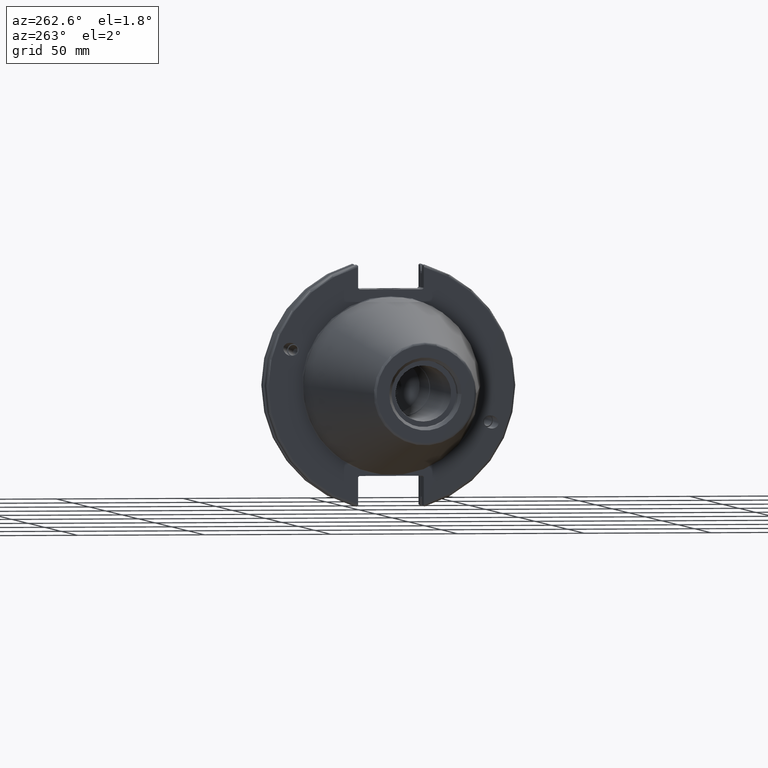
[diagram: clean part render]
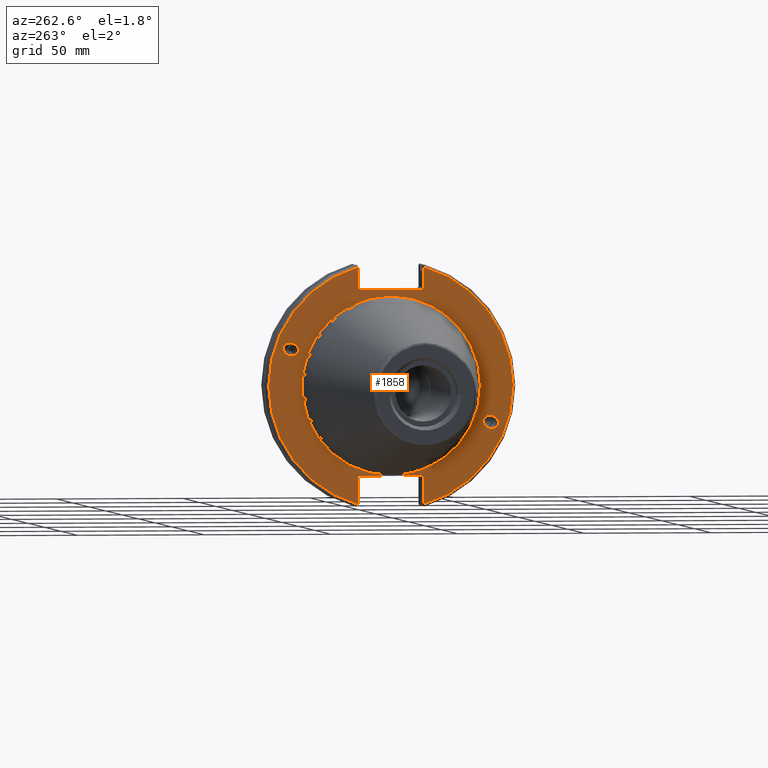
[diagram: same view with one face highlighted and labeled with its STEP entity id]
A machine part, auxiliary view. The second image highlights one B-rep face of the part: STEP entity #1858.
In plain terms, the highlighted planar face has unit normal (-1, 0, 0).
Its self-contained STEP definition (entity closure, byte-faithful):
#31=ELLIPSE('',#2040,3.05193647190364,2.5);
#32=ELLIPSE('',#2074,3.05193647190364,2.5);
#85=FACE_BOUND('',#567,.T.);
#86=FACE_BOUND('',#568,.T.);
#87=FACE_BOUND('',#569,.T.);
#103=PLANE('',#2088);
#212=LINE('',#3477,#315);
#213=LINE('',#3479,#316);
#214=LINE('',#3481,#317);
#215=LINE('',#3483,#318);
#216=LINE('',#3485,#319);
#217=LINE('',#3489,#320);
#218=LINE('',#3491,#321);
#219=LINE('',#3493,#322);
#220=LINE('',#3495,#323);
#221=LINE('',#3496,#324);
#315=VECTOR('',#2544,10.);
#316=VECTOR('',#2545,10.);
#317=VECTOR('',#2546,10.);
#318=VECTOR('',#2547,10.);
#319=VECTOR('',#2548,10.);
#320=VECTOR('',#2551,10.);
#321=VECTOR('',#2552,10.);
#322=VECTOR('',#2553,10.);
#323=VECTOR('',#2554,10.);
#324=VECTOR('',#2555,10.);
#446=FACE_OUTER_BOUND('',#566,.T.);
#566=EDGE_LOOP('',(#1540,#1541,#1542,#1543,#1544,#1545,#1546,#1547,#1548,
#1549,#1550,#1551));
#567=EDGE_LOOP('',(#1552));
#568=EDGE_LOOP('',(#1553));
#569=EDGE_LOOP('',(#1554));
#714=CIRCLE('',#2086,35.125);
#716=CIRCLE('',#2089,48.2125);
#717=CIRCLE('',#2090,48.2125);
#831=VERTEX_POINT('',#3186);
#869=VERTEX_POINT('',#3445);
#876=VERTEX_POINT('',#3468);
#877=VERTEX_POINT('',#3473);
#878=VERTEX_POINT('',#3474);
#879=VERTEX_POINT('',#3476);
#880=VERTEX_POINT('',#3478);
#881=VERTEX_POINT('',#3480);
#882=VERTEX_POINT('',#3482);
#883=VERTEX_POINT('',#3484);
#884=VERTEX_POINT('',#3486);
#885=VERTEX_POINT('',#3488);
#886=VERTEX_POINT('',#3490);
#887=VERTEX_POINT('',#3492);
#888=VERTEX_POINT('',#3494);
#1053=EDGE_CURVE('',#831,#831,#31,.T.);
#1104=EDGE_CURVE('',#869,#869,#32,.T.);
#1115=EDGE_CURVE('',#876,#876,#714,.T.);
#1117=EDGE_CURVE('',#877,#878,#716,.T.);
#1118=EDGE_CURVE('',#877,#879,#212,.T.);
#1119=EDGE_CURVE('',#880,#879,#213,.T.);
#1120=EDGE_CURVE('',#880,#881,#214,.T.);
#1121=EDGE_CURVE('',#882,#881,#215,.T.);
#1122=EDGE_CURVE('',#882,#883,#216,.T.);
#1123=EDGE_CURVE('',#884,#883,#717,.T.);
#1124=EDGE_CURVE('',#884,#885,#217,.T.);
#1125=EDGE_CURVE('',#886,#885,#218,.T.);
#1126=EDGE_CURVE('',#886,#887,#219,.T.);
#1127=EDGE_CURVE('',#888,#887,#220,.T.);
#1128=EDGE_CURVE('',#888,#878,#221,.T.);
#1540=ORIENTED_EDGE('',*,*,#1117,.F.);
#1541=ORIENTED_EDGE('',*,*,#1118,.T.);
#1542=ORIENTED_EDGE('',*,*,#1119,.F.);
#1543=ORIENTED_EDGE('',*,*,#1120,.T.);
#1544=ORIENTED_EDGE('',*,*,#1121,.F.);
#1545=ORIENTED_EDGE('',*,*,#1122,.T.);
#1546=ORIENTED_EDGE('',*,*,#1123,.F.);
#1547=ORIENTED_EDGE('',*,*,#1124,.T.);
#1548=ORIENTED_EDGE('',*,*,#1125,.F.);
#1549=ORIENTED_EDGE('',*,*,#1126,.T.);
#1550=ORIENTED_EDGE('',*,*,#1127,.F.);
#1551=ORIENTED_EDGE('',*,*,#1128,.T.);
#1552=ORIENTED_EDGE('',*,*,#1053,.T.);
#1553=ORIENTED_EDGE('',*,*,#1104,.T.);
#1554=ORIENTED_EDGE('',*,*,#1115,.F.);
#1858=ADVANCED_FACE('',(#446,#85,#86,#87),#103,.T.);
#2040=AXIS2_PLACEMENT_3D('',#3188,#2424,#2425);
#2074=AXIS2_PLACEMENT_3D('',#3447,#2508,#2509);
#2086=AXIS2_PLACEMENT_3D('',#3470,#2536,#2537);
#2088=AXIS2_PLACEMENT_3D('',#3472,#2540,#2541);
#2089=AXIS2_PLACEMENT_3D('',#3475,#2542,#2543);
#2090=AXIS2_PLACEMENT_3D('',#3487,#2549,#2550);
#2424=DIRECTION('center_axis',(1.,0.,0.));
#2425=DIRECTION('ref_axis',(0.,-0.939692620785907,-0.342020143325671));
#2508=DIRECTION('center_axis',(1.,0.,0.));
#2509=DIRECTION('ref_axis',(0.,0.939692620785907,0.342020143325672));
#2536=DIRECTION('center_axis',(-1.,0.,0.));
#2537=DIRECTION('ref_axis',(0.,-1.,1.83697019872103E-16));
#2540=DIRECTION('center_axis',(-1.,0.,0.));
#2541=DIRECTION('ref_axis',(0.,0.,1.));
#2542=DIRECTION('center_axis',(1.,0.,0.));
#2543=DIRECTION('ref_axis',(0.,-1.,1.60812264967664E-16));
#2544=DIRECTION('',(0.,0.,-1.));
#2545=DIRECTION('',(0.,-0.707106781186549,0.707106781186546));
#2546=DIRECTION('',(0.,1.,0.));
#2547=DIRECTION('',(0.,-0.707106781186549,-0.707106781186546));
#2548=DIRECTION('',(0.,0.,1.));
#2549=DIRECTION('center_axis',(1.,0.,0.));
#2550=DIRECTION('ref_axis',(0.,1.,-6.12323399573677E-17));
#2551=DIRECTION('',(0.,0.,1.));
#2552=DIRECTION('',(0.,0.707106781186549,-0.707106781186546));
#2553=DIRECTION('',(0.,-1.,0.));
#2554=DIRECTION('',(0.,0.707106781186549,0.707106781186546));
#2555=DIRECTION('',(0.,0.,-1.));
#3186=CARTESIAN_POINT('',(3.175,-36.5992078912529,-13.3210222701368));
#3188=CARTESIAN_POINT('Origin',(3.175,-39.4670900730082,-14.3648460196781));
#3445=CARTESIAN_POINT('',(3.175,36.5992078912529,13.3210222701368));
#3447=CARTESIAN_POINT('Origin',(3.175,39.4670900730082,14.3648460196781));
#3468=CARTESIAN_POINT('',(3.175,-4.30157188200508E-15,35.125));
#3470=CARTESIAN_POINT('Origin',(3.175,0.,0.));
#3472=CARTESIAN_POINT('Origin',(3.175,49.2125,0.));
#3473=CARTESIAN_POINT('',(3.175,-12.95,46.4407434937254));
#3474=CARTESIAN_POINT('',(3.175,-12.95,-46.4407434937254));
#3475=CARTESIAN_POINT('Origin',(3.175,0.,0.));
#3476=CARTESIAN_POINT('',(3.175,-12.95,38.219));
#3477=CARTESIAN_POINT('',(3.175,-12.95,18.8595));
#3478=CARTESIAN_POINT('',(3.175,-12.45,37.719));
#3479=CARTESIAN_POINT('',(3.175,12.2703750000001,12.998625));
#3480=CARTESIAN_POINT('',(3.175,12.45,37.719));
#3481=CARTESIAN_POINT('',(3.175,24.60625,37.719));
#3482=CARTESIAN_POINT('',(3.175,12.95,38.219));
#3483=CARTESIAN_POINT('',(3.175,12.335875,37.604875));
#3484=CARTESIAN_POINT('',(3.175,12.95,46.4407434937254));
#3485=CARTESIAN_POINT('',(3.175,12.95,18.8595));
#3486=CARTESIAN_POINT('',(3.175,12.95,-46.4407434937254));
#3487=CARTESIAN_POINT('Origin',(3.175,0.,0.));
#3488=CARTESIAN_POINT('',(3.175,12.95,-35.806));
#3489=CARTESIAN_POINT('',(3.175,12.95,-17.653));
#3490=CARTESIAN_POINT('',(3.175,12.45,-35.306));
#3491=CARTESIAN_POINT('',(3.175,12.939125,-35.795125));
#3492=CARTESIAN_POINT('',(3.175,-12.45,-35.306));
#3493=CARTESIAN_POINT('',(3.175,24.60625,-35.306));
#3494=CARTESIAN_POINT('',(3.175,-12.95,-35.806));
#3495=CARTESIAN_POINT('',(3.175,11.6671250000001,-11.188875));
#3496=CARTESIAN_POINT('',(3.175,-12.95,-17.653));